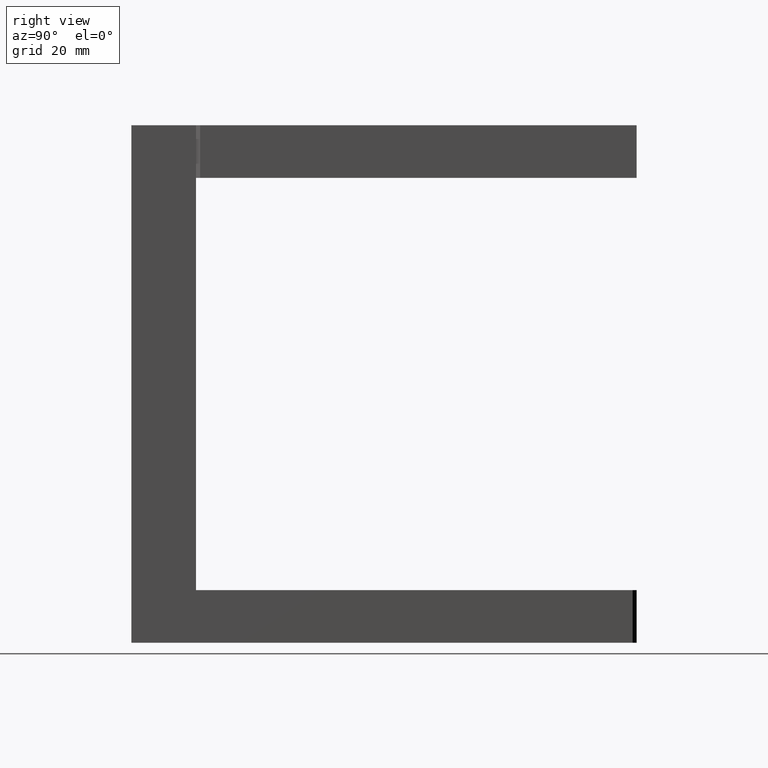
[diagram: clean part render]
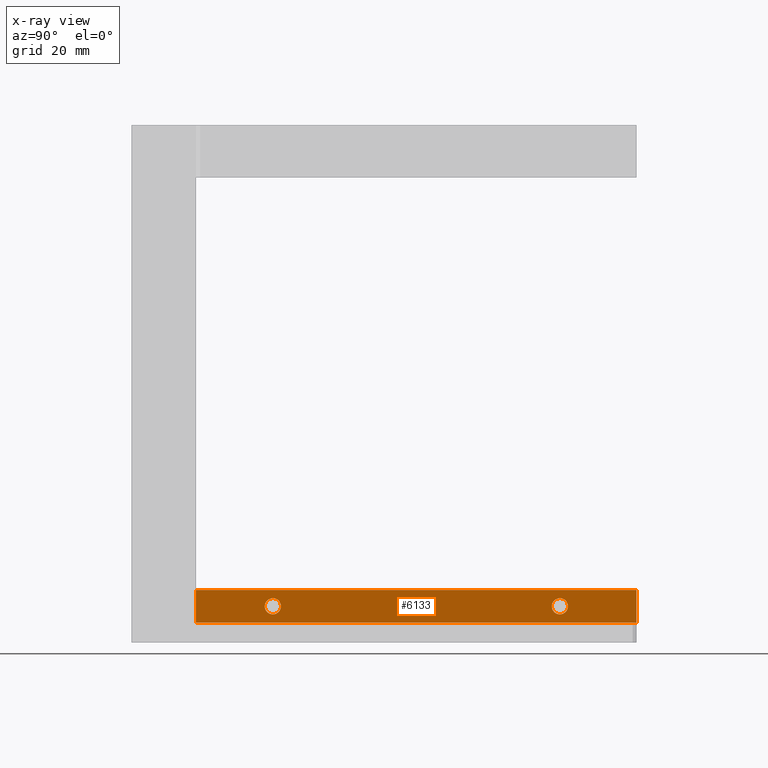
[diagram: x-ray — body ghosted, one internal face saturated and labeled with its STEP entity id]
A machine part, right view, then the same camera in x-ray: the body is ghosted and one INTERNAL B-rep face — a face not visible from any outside direction — is saturated and labeled: STEP entity #6133.
In plain terms, the highlighted planar face has unit normal (1, -0, -0).
Its self-contained STEP definition (entity closure, byte-faithful):
#205 = AXIS2_PLACEMENT_3D ( 'NONE', #2616, #5207, #5855 ) ;
#217 = DIRECTION ( 'NONE',  ( 1.000000000000000000, -2.202180373467177100E-016, -8.647275977557271000E-016 ) ) ;
#254 = CARTESIAN_POINT ( 'NONE',  ( -1.568119891008190200, 33.11989100817428500, -61.49999999999998600 ) ) ;
#255 = ORIENTED_EDGE ( 'NONE', *, *, #6831, .F. ) ;
#275 = DIRECTION ( 'NONE',  ( -1.000000000000000000, 3.435584679780958900E-016, 8.647275977557271000E-016 ) ) ;
#464 = EDGE_CURVE ( 'NONE', #7013, #5863, #3897, .T. ) ;
#471 = CIRCLE ( 'NONE', #4041, 2.000000000000008900 ) ;
#657 = CARTESIAN_POINT ( 'NONE',  ( -1.568119891008162400, 123.1198910081745800, -57.50000000000000000 ) ) ;
#756 = EDGE_CURVE ( 'NONE', #4168, #2473, #4389, .T. ) ;
#771 = DIRECTION ( 'NONE',  ( 8.673617379884027600E-016, 0.0000000000000000000, 1.000000000000000000 ) ) ;
#1105 = EDGE_CURVE ( 'NONE', #2378, #2219, #1832, .T. ) ;
#1268 = AXIS2_PLACEMENT_3D ( 'NONE', #5200, #3848, #5118 ) ;
#1411 = CARTESIAN_POINT ( 'NONE',  ( -1.568119891008190200, 33.11989100817428500, -61.49999999999998600 ) ) ;
#1491 = AXIS2_PLACEMENT_3D ( 'NONE', #5243, #217, #5276 ) ;
#1594 = FACE_BOUND ( 'NONE', #5653, .T. ) ;
#1596 = AXIS2_PLACEMENT_3D ( 'NONE', #254, #5365, #2737 ) ;
#1650 = ORIENTED_EDGE ( 'NONE', *, *, #5199, .F. ) ;
#1812 = ORIENTED_EDGE ( 'NONE', *, *, #2214, .F. ) ;
#1832 = CIRCLE ( 'NONE', #7569, 2.000000000000001800 ) ;
#1889 = CARTESIAN_POINT ( 'NONE',  ( -1.568119891008167500, 104.1198910081745600, -63.49999999999998600 ) ) ;
#1969 = EDGE_LOOP ( 'NONE', ( #2565, #3476 ) ) ;
#2013 = DIRECTION ( 'NONE',  ( -2.202180373467177100E-016, -1.000000000000000000, -1.827766615188189800E-030 ) ) ;
#2107 = CARTESIAN_POINT ( 'NONE',  ( -1.568119891008166000, 104.1198910081745600, -61.49999999999999300 ) ) ;
#2214 = EDGE_CURVE ( 'NONE', #4168, #7013, #5732, .T. ) ;
#2219 = VERTEX_POINT ( 'NONE', #2387 ) ;
#2234 = LINE ( 'NONE', #7830, #6896 ) ;
#2301 = VECTOR ( 'NONE', #7551, 1000.000000000000000 ) ;
#2378 = VERTEX_POINT ( 'NONE', #4338 ) ;
#2387 = CARTESIAN_POINT ( 'NONE',  ( -1.568119891008188400, 33.11989100817428500, -59.49999999999998600 ) ) ;
#2473 = VERTEX_POINT ( 'NONE', #4175 ) ;
#2565 = ORIENTED_EDGE ( 'NONE', *, *, #7535, .F. ) ;
#2616 = CARTESIAN_POINT ( 'NONE',  ( -1.568119891008177900, 68.61989100817437800, -61.49999999999999300 ) ) ;
#2675 = VECTOR ( 'NONE', #5585, 1000.000000000000000 ) ;
#2737 = DIRECTION ( 'NONE',  ( 8.673617379884027600E-016, 0.0000000000000000000, 1.000000000000000000 ) ) ;
#2774 = CARTESIAN_POINT ( 'NONE',  ( -1.568119891008193300, 14.11989100817418600, -65.50000000000000000 ) ) ;
#2804 = VERTEX_POINT ( 'NONE', #4274 ) ;
#2942 = CIRCLE ( 'NONE', #3717, 2.000000000000008900 ) ;
#3057 = CIRCLE ( 'NONE', #205, 2.000000000000008900 ) ;
#3134 = VERTEX_POINT ( 'NONE', #7652 ) ;
#3149 = CARTESIAN_POINT ( 'NONE',  ( -1.568119891008186200, 14.11989100817418600, -57.49999999999999300 ) ) ;
#3293 = DIRECTION ( 'NONE',  ( -8.647275977557241400E-016, -2.295887845821898000E-030, -1.000000000000000000 ) ) ;
#3454 = ORIENTED_EDGE ( 'NONE', *, *, #5362, .T. ) ;
#3475 = DIRECTION ( 'NONE',  ( -1.000000000000000000, 3.435584679780958900E-016, 8.647275977557271000E-016 ) ) ;
#3476 = ORIENTED_EDGE ( 'NONE', *, *, #1105, .F. ) ;
#3525 = EDGE_LOOP ( 'NONE', ( #3454, #6245, #1812, #3984 ) ) ;
#3540 = CARTESIAN_POINT ( 'NONE',  ( -1.568119891008162400, 123.1198910081745800, -57.50000000000000000 ) ) ;
#3673 = FACE_BOUND ( 'NONE', #1969, .T. ) ;
#3717 = AXIS2_PLACEMENT_3D ( 'NONE', #2107, #5313, #5928 ) ;
#3848 = DIRECTION ( 'NONE',  ( -1.000000000000000000, 3.435584679780958900E-016, 8.647275977557271000E-016 ) ) ;
#3882 = EDGE_CURVE ( 'NONE', #2804, #3134, #3057, .T. ) ;
#3897 = LINE ( 'NONE', #3149, #4303 ) ;
#3984 = ORIENTED_EDGE ( 'NONE', *, *, #756, .T. ) ;
#4041 = AXIS2_PLACEMENT_3D ( 'NONE', #7383, #3475, #5469 ) ;
#4168 = VERTEX_POINT ( 'NONE', #657 ) ;
#4175 = CARTESIAN_POINT ( 'NONE',  ( -1.568119891008169700, 123.1198910081745800, -65.50000000000000000 ) ) ;
#4274 = CARTESIAN_POINT ( 'NONE',  ( -1.568119891008176400, 68.61989100817437800, -59.49999999999998600 ) ) ;
#4303 = VECTOR ( 'NONE', #3293, 1000.000000000000000 ) ;
#4338 = CARTESIAN_POINT ( 'NONE',  ( -1.568119891008191900, 33.11989100817428500, -63.49999999999998600 ) ) ;
#4372 = FACE_BOUND ( 'NONE', #5360, .T. ) ;
#4373 = ORIENTED_EDGE ( 'NONE', *, *, #3882, .F. ) ;
#4389 = LINE ( 'NONE', #3540, #2675 ) ;
#4532 = VERTEX_POINT ( 'NONE', #5017 ) ;
#5017 = CARTESIAN_POINT ( 'NONE',  ( -1.568119891008164200, 104.1198910081745600, -59.49999999999998600 ) ) ;
#5118 = DIRECTION ( 'NONE',  ( 8.673617379883997000E-016, 0.0000000000000000000, 1.000000000000000000 ) ) ;
#5199 = EDGE_CURVE ( 'NONE', #7329, #4532, #7587, .T. ) ;
#5200 = CARTESIAN_POINT ( 'NONE',  ( -1.568119891008166000, 104.1198910081745600, -61.49999999999999300 ) ) ;
#5207 = DIRECTION ( 'NONE',  ( -1.000000000000000000, 3.435584679780958900E-016, 8.647275977557271000E-016 ) ) ;
#5243 = CARTESIAN_POINT ( 'NONE',  ( -1.568119891008162400, 123.1198910081745800, -57.50000000000000000 ) ) ;
#5276 = DIRECTION ( 'NONE',  ( 2.202180373467177100E-016, 1.000000000000000000, 1.827766615188189800E-030 ) ) ;
#5313 = DIRECTION ( 'NONE',  ( -1.000000000000000000, 3.435584679780958900E-016, 8.647275977557271000E-016 ) ) ;
#5360 = EDGE_LOOP ( 'NONE', ( #255, #1650 ) ) ;
#5362 = EDGE_CURVE ( 'NONE', #2473, #5863, #2234, .T. ) ;
#5365 = DIRECTION ( 'NONE',  ( -1.000000000000000000, 3.435584679780958900E-016, 8.647275977557271000E-016 ) ) ;
#5469 = DIRECTION ( 'NONE',  ( 8.673617379883997000E-016, 0.0000000000000000000, 1.000000000000000000 ) ) ;
#5585 = DIRECTION ( 'NONE',  ( -8.647275977557241400E-016, -2.295887845821898000E-030, -1.000000000000000000 ) ) ;
#5653 = EDGE_LOOP ( 'NONE', ( #4373, #6571 ) ) ;
#5732 = LINE ( 'NONE', #6487, #2301 ) ;
#5829 = EDGE_CURVE ( 'NONE', #3134, #2804, #471, .T. ) ;
#5855 = DIRECTION ( 'NONE',  ( 8.673617379883997000E-016, 0.0000000000000000000, 1.000000000000000000 ) ) ;
#5863 = VERTEX_POINT ( 'NONE', #2774 ) ;
#5928 = DIRECTION ( 'NONE',  ( 8.673617379883997000E-016, 0.0000000000000000000, 1.000000000000000000 ) ) ;
#6133 = ADVANCED_FACE ( 'NONE', ( #4372, #1594, #3673, #6317 ), #6460, .F. ) ;
#6245 = ORIENTED_EDGE ( 'NONE', *, *, #464, .F. ) ;
#6317 = FACE_OUTER_BOUND ( 'NONE', #3525, .T. ) ;
#6460 = PLANE ( 'NONE',  #1491 ) ;
#6487 = CARTESIAN_POINT ( 'NONE',  ( -1.568119891008162400, 123.1198910081745800, -57.50000000000000000 ) ) ;
#6571 = ORIENTED_EDGE ( 'NONE', *, *, #5829, .F. ) ;
#6831 = EDGE_CURVE ( 'NONE', #4532, #7329, #2942, .T. ) ;
#6896 = VECTOR ( 'NONE', #2013, 1000.000000000000000 ) ;
#7013 = VERTEX_POINT ( 'NONE', #7491 ) ;
#7329 = VERTEX_POINT ( 'NONE', #1889 ) ;
#7383 = CARTESIAN_POINT ( 'NONE',  ( -1.568119891008177900, 68.61989100817437800, -61.49999999999999300 ) ) ;
#7491 = CARTESIAN_POINT ( 'NONE',  ( -1.568119891008186200, 14.11989100817418600, -57.49999999999999300 ) ) ;
#7535 = EDGE_CURVE ( 'NONE', #2219, #2378, #7576, .T. ) ;
#7551 = DIRECTION ( 'NONE',  ( -2.202180373467177100E-016, -1.000000000000000000, -1.827766615188189800E-030 ) ) ;
#7569 = AXIS2_PLACEMENT_3D ( 'NONE', #1411, #275, #771 ) ;
#7576 = CIRCLE ( 'NONE', #1596, 2.000000000000001800 ) ;
#7587 = CIRCLE ( 'NONE', #1268, 2.000000000000008900 ) ;
#7652 = CARTESIAN_POINT ( 'NONE',  ( -1.568119891008179700, 68.61989100817437800, -63.49999999999998600 ) ) ;
#7830 = CARTESIAN_POINT ( 'NONE',  ( -1.568119891008169700, 123.1198910081745800, -65.50000000000000000 ) ) ;